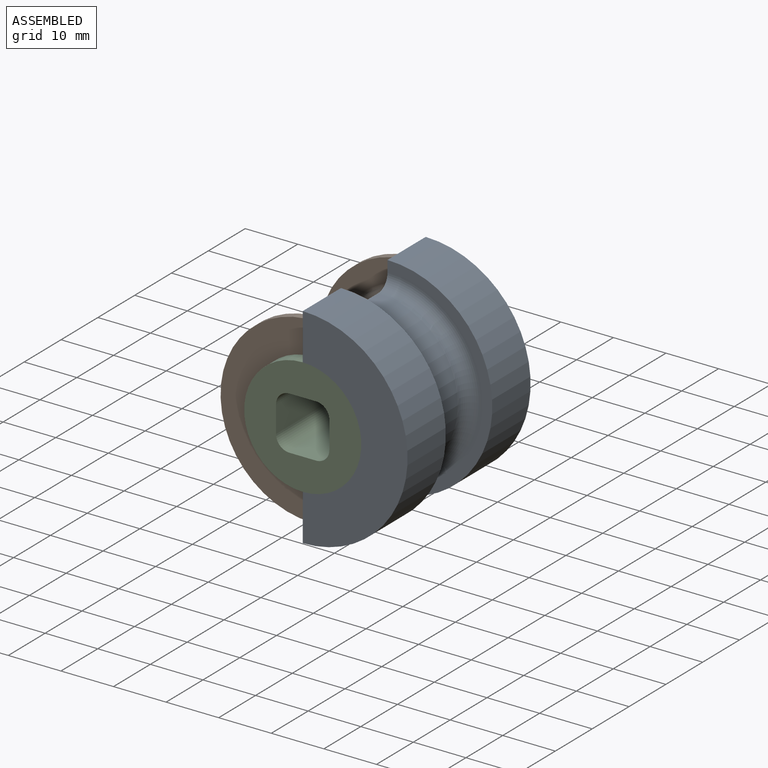
[diagram: assembled view]
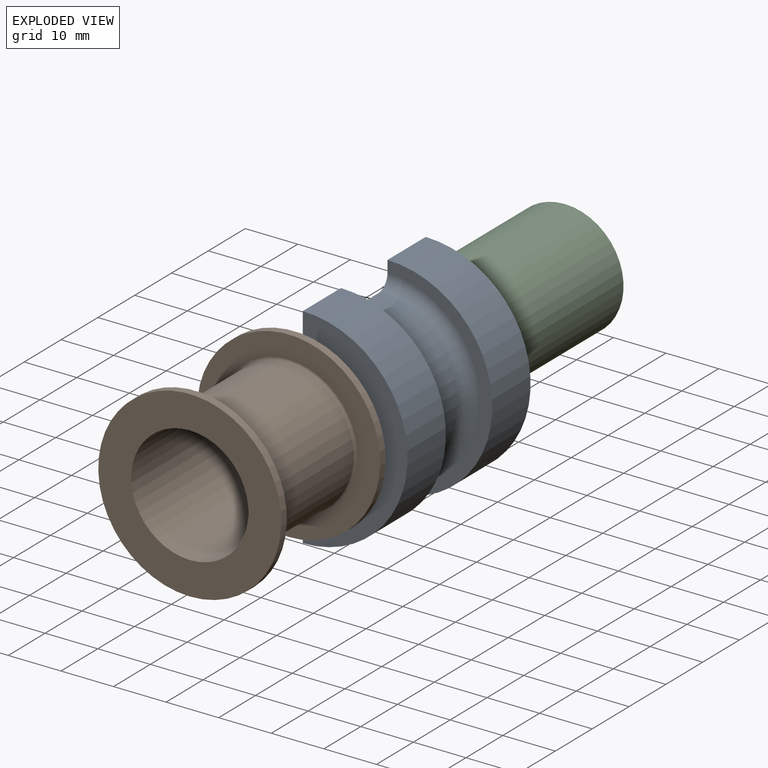
[diagram: exploded view]
GUIDED TOUR — MATED ASSEMBLY (Onshape document 93d06489c012cacd7a28e171, AutoMate assembly 93d06489c012cacd7a28e171_f28ea91fb19ef04345c81e36_e78b62e4adffebb3aece36a7_default)

This assembly has 3 components, labeled P0..P2 below (a component is one placed occurrence of a part; the same part can appear more than once), held together by 2 mates. A mate is a constraint between two components; its type names the relative motion it leaves free:
  REVOLUTE — leaves rotation about the listed axis free (a hinge).
Axis/direction vectors are unit vectors and 'through' points are millimeter coordinates, both in the assembly's world frame.

MATES
  1. REVOLUTE "Revolute 1": P1 <-> P0, axis (0.000, -1.000, 0.000) through (35.04, 1.01, -7.10) mm
  2. REVOLUTE "Revolute 2": P2 <-> P0, axis (0.000, -1.000, 0.000) through (35.04, -1.53, -7.10) mm

ASSEMBLY ORDER
  1. P0 — the base component [order heuristic]
  2. P1 [order heuristic]
  3. P2 [order heuristic]
Order-tag legend:
  [order heuristic] — this assembly is geometrically interlocked (no collision-free removal order exists), so components are listed in mate-graph order; insertion feasibility is not verified.

Of the 3 components, 1 carries the full construction recipe — the FeatureScript program that regenerates the part's solid from scratch; the rest are supplied as boundary geometry only.
Each toured component is shown spotlighted twice — in the assembled view, then in the exploded view, where a leader line traces a displaced component back to its assembled socket (saturated green if recipe-attached, orange if geometry-only; every other component desaturated gray) — followed by its recipe or geometry summary and the mates that hold it.
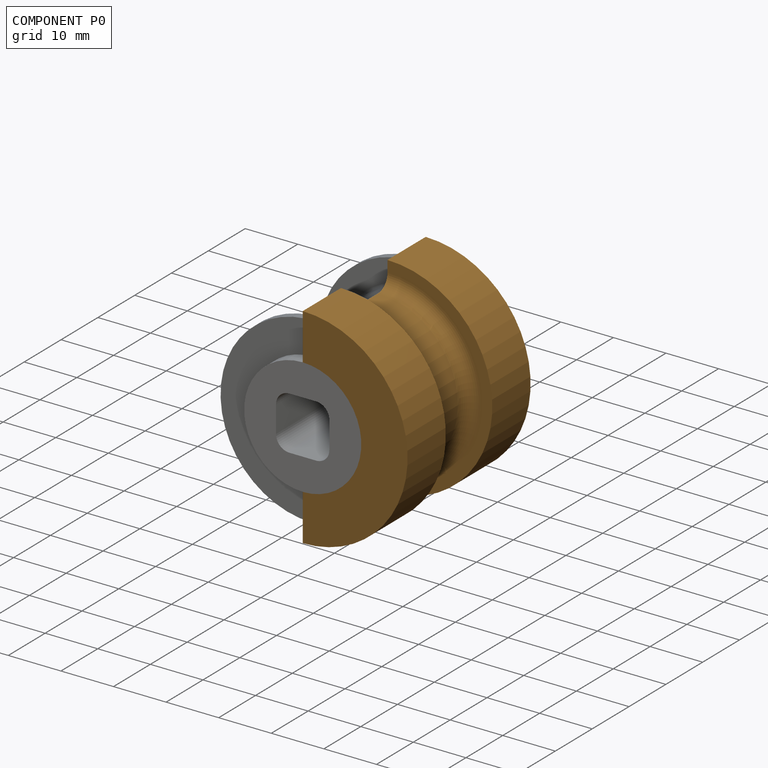
[diagram: component P0 — assembled]
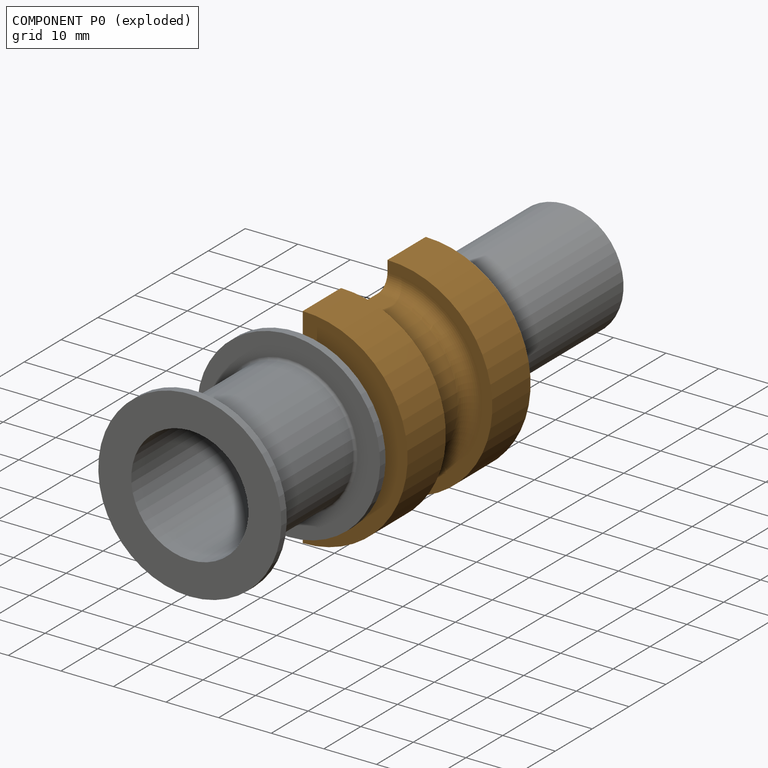
[diagram: component P0 — exploded]
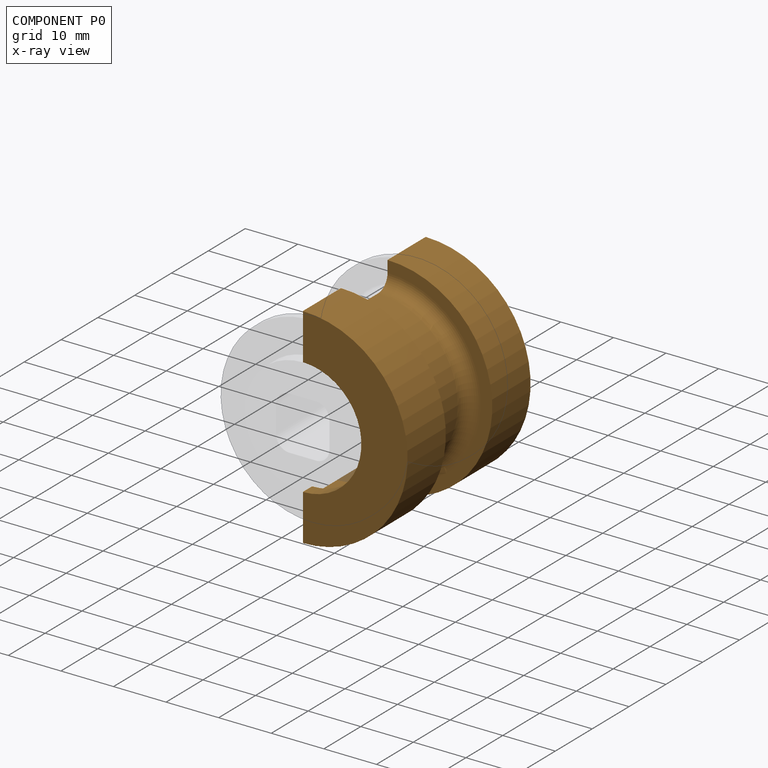
[diagram: component P0 — x-ray view]
COMPONENT P0 — geometry summary (no construction recipe available for this part):
  bounding box: 42.3 x 33.4 x 21.1 mm
  B-rep topology: 1 solid, 31 faces, 152 edges
  volume: 8726 mm^3 (29% of its bounding box)
  symmetry: mirror-symmetric across its z mid-plane
Held by: REVOLUTE mate "Revolute 1" to P1; REVOLUTE mate "Revolute 2" to P2.
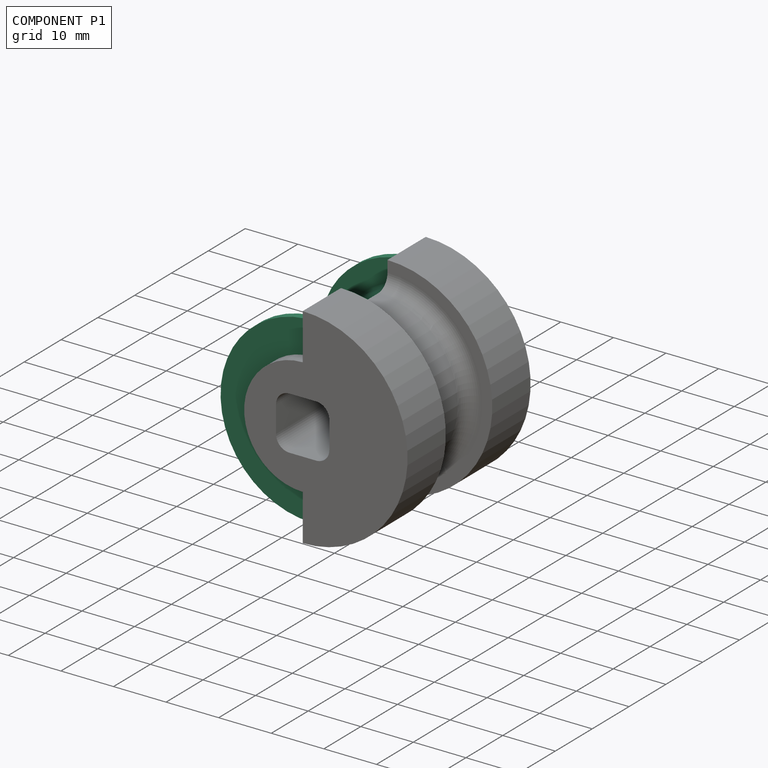
[diagram: component P1 — assembled]
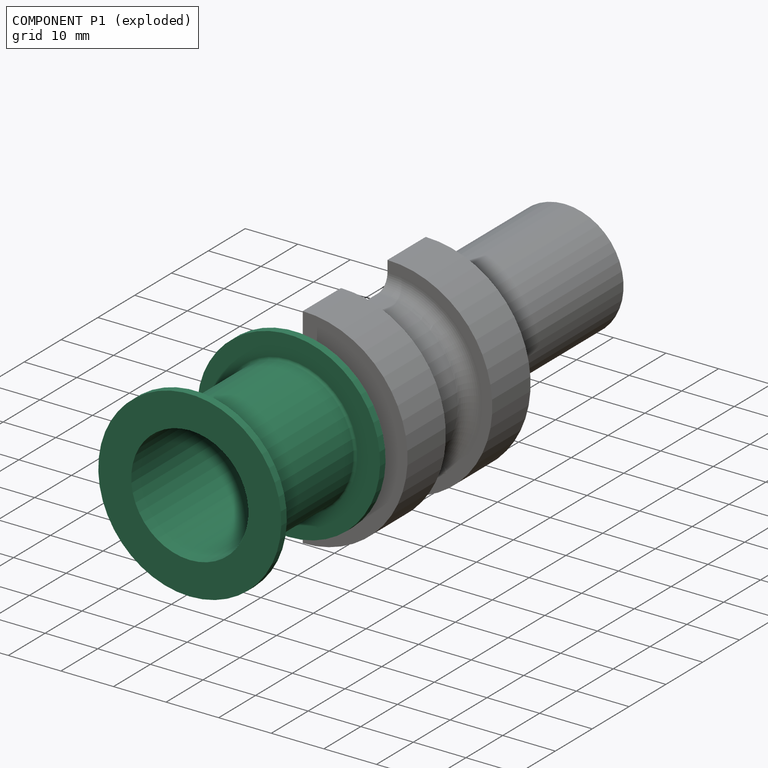
[diagram: component P1 — exploded]
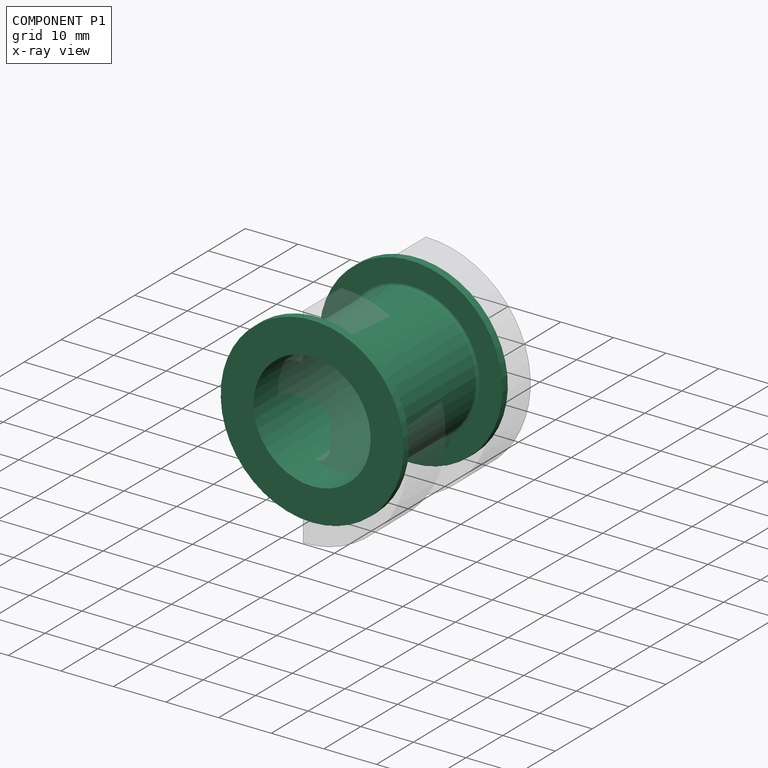
[diagram: component P1 — x-ray view]
COMPONENT P1 — recipe-attached (CADFS 00992720, mesh-verified: the recipe's output STEP matches this component's geometry to below the mesh-comparison resolution (tessellation chordal tolerance ~0.0851 mm)).
Held by: REVOLUTE mate "Revolute 1" to P0.
Construction recipe (FeatureScript — the CAD program that rebuilds this solid; sketch coordinates are in the units given by the * unit suffixes, e.g. mm):

FeatureScript 1511;
import(path : "onshape/std/geometry.fs", version : "1511.0");
import(path : "onshape/std/common.fs", version : "1511.0");
const mm = millimeter;
const VERTEX = EntityType.VERTEX;
const EDGE = EntityType.EDGE;
const FACE = EntityType.FACE;
const BODY = EntityType.BODY;
function v(x, y){return vector(x, y);}
function OD(order){return orderDisambiguation(order);}
function OSD(set){return originalSetDisambiguation(set);}
function TD(topology){return topologyDisambiguation(topology);}
function TDD(query){return trueDependencyDisambiguation(query);}
function sQuery(a, b, c) {return sketchEntityQuery(a, b, c);}

annotation { "Feature Type Name" : "Feature", "Feature Type Description" : "" }
export const myFeature = defineFeature(function(context is Context, id is Id, definition is map)
    precondition{}
    {
        {
            var Q0;
            Q0=qCreatedBy(makeId("Top.planeOp"),FACE);
            var sketch = newSketch(context, id + "F0", { "sketchPlane" : qUnion([Q0])});
            skLineSegment(sketch, "E0", {"start": v(0, 0) * mm, "end": v(17.4, 0) * mm, "construction": true});
            skCircle(sketch, "E1", {"center": v(0, 0) * mm, "radius": 8.9 * mm, "construction": true});
            skLineSegment(sketch, "E2", {"start": v(17.4, 12.66) * mm, "end": v(13.14, 12.66) * mm});
            skLineSegment(sketch, "E3", {"start": v(17.4, -12.66) * mm, "end": v(13.14, -12.66) * mm});
            skLineSegment(sketch, "E4", {"start": v(0, -15.82) * mm, "end": v(0, 21.52) * mm, "construction": true});
            skLineSegment(sketch, "E5.0", {"start": v(17.4, -14.16) * mm, "end": v(11.14, -14.16) * mm});
            skLineSegment(sketch, "E5.2", {"start": v(17.4, 14.17) * mm, "end": v(11.14, 14.17) * mm});
            skLineSegment(sketch, "E6", {"start": v(17.4, 14.17) * mm, "end": v(17.4, 12.66) * mm});
            skLineSegment(sketch, "E7", {"start": v(17.4, -12.66) * mm, "end": v(17.4, -14.16) * mm});
            skLineSegment(sketch, "E8", {"start": v(11.14, 14.17) * mm, "end": v(11.14, -14.16) * mm});
            skLineSegment(sketch, "E9", {"start": v(12.64, 12.16) * mm, "end": v(12.64, -12.16) * mm});
            skPoint(sketch, "E10.visualSharp", {"position": v(12.64, 12.66) * mm});
            skArc(sketch, "E10.filletArc", {"start": v(13.14, 12.66) * mm, "mid": v(12.78, 12.52) * mm, "end": v(12.64, 12.16) * mm});
            skPoint(sketch, "E11.visualSharp", {"position": v(12.64, -12.66) * mm});
            skArc(sketch, "E11.filletArc", {"start": v(12.64, -12.16) * mm, "mid": v(12.78, -12.5) * mm, "end": v(13.14, -12.66) * mm});
            skPoint(sketch, "E12.visualSharp", {"position": v(11.14, 14.17) * mm});
            skPoint(sketch, "E13.visualSharp", {"position": v(11.14, -14.16) * mm});
            skSolve(sketch);
        }
        {
            var Q0;
            Q0=qSketchRegion(id+"F0",true);
            var Q1;
            Q1=sQuery(id+"F0.wireOp",EDGE,"E4");
            revolve(context, id + "F1", {"entities" : qUnion([Q0]), "axis" : qUnion([Q1]), "revolveType" : RevolveType.FULL});
        }
    });
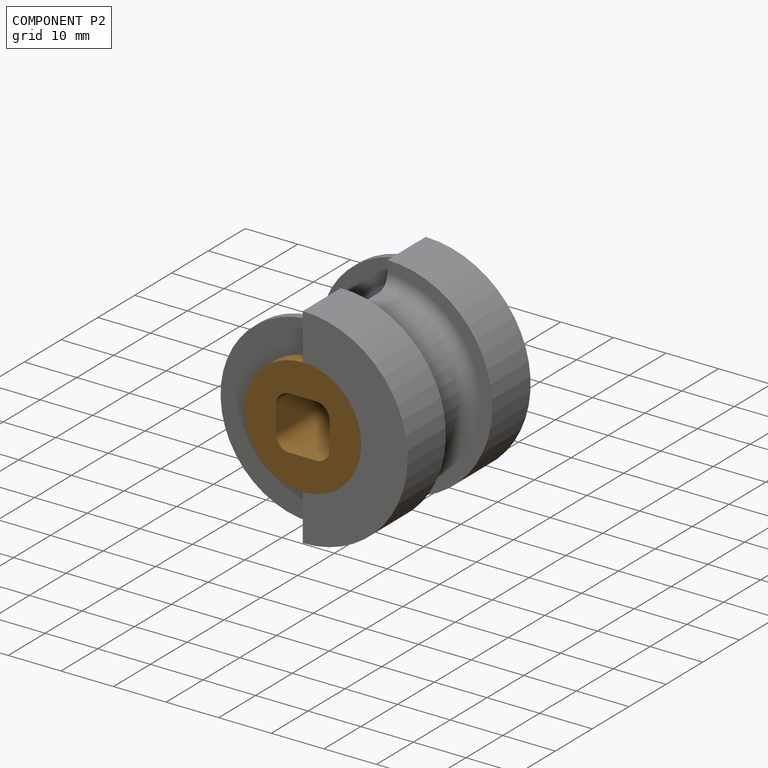
[diagram: component P2 — assembled]
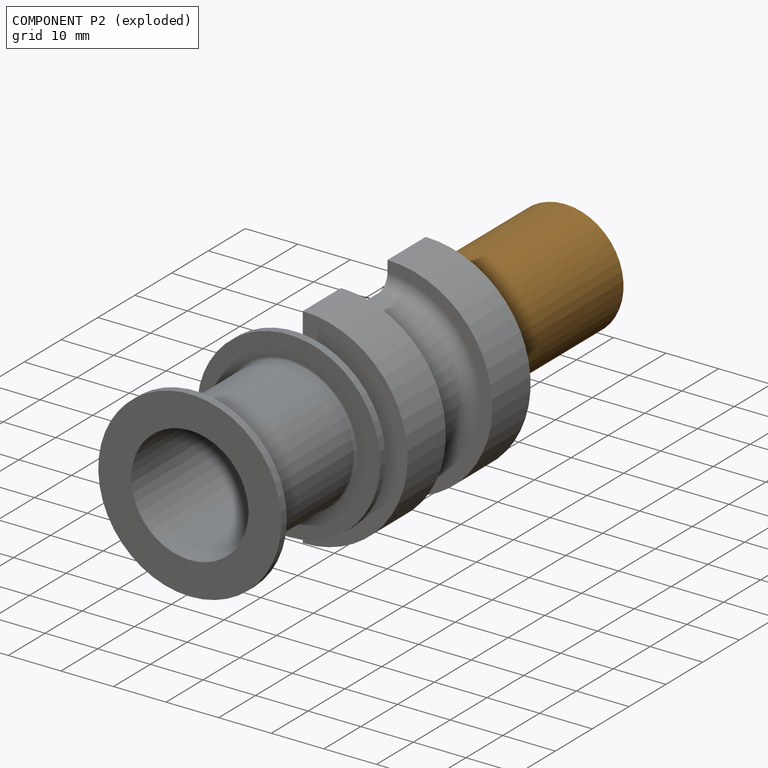
[diagram: component P2 — exploded]
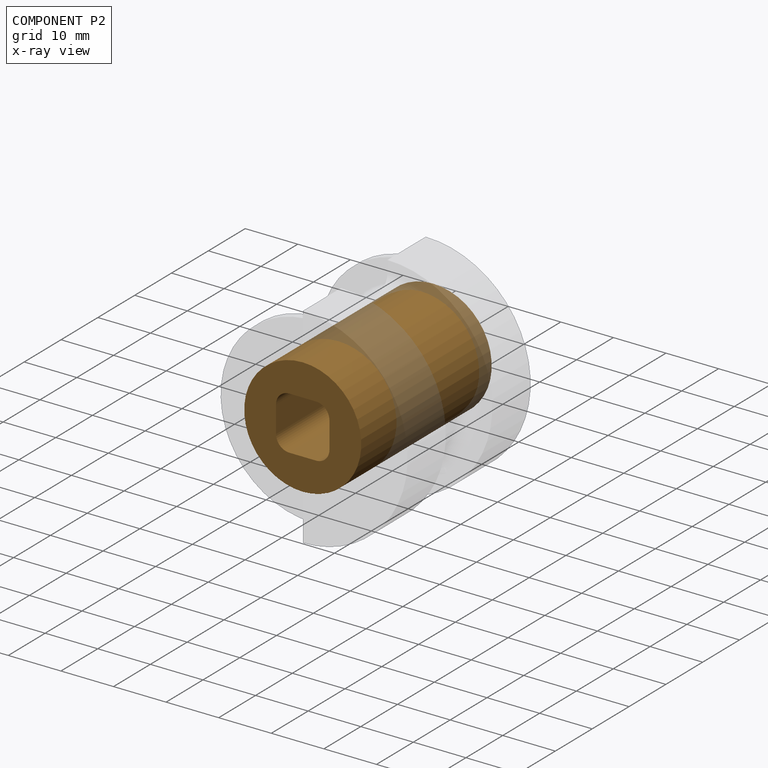
[diagram: component P2 — x-ray view]
COMPONENT P2 — geometry summary (no construction recipe available for this part):
  bounding box: 35.4 x 22.3 x 22.3 mm
  B-rep topology: 1 solid, 11 faces, 56 edges
  volume: 10338 mm^3 (59% of its bounding box)
  symmetry: 2-fold rotationally symmetric about the x axis; 4-fold rotationally symmetric about the y axis; 2-fold rotationally symmetric about the z axis; mirror-symmetric across its x mid-plane, y mid-plane, z mid-plane
Held by: REVOLUTE mate "Revolute 2" to P0.
PROVENANCE & LICENSES
Assembly (occurrences, transforms, mates, per-part STEP geometry): AutoMate dataset, Zenodo record 7776208, CC0.
Construction recipes: CADFS (HuggingFace VladPyatov/CADFS, CC-BY-4.0, layered over the ABC dataset), FeatureScript reconstruction programs keyed by ABC model id.
Join: ABC meta listings map ABC model id -> Onshape documentId; within a shared document, parts are matched by geometric signature (bounding-box dims + volume at 0.1% relative tolerance, exact B-rep face/solid counts).
Verification: 1 of this assembly's 3 components carries a recipe attachment, and every attachment is mesh-verified: the CADFS STEP and the AutoMate member STEP were compared as meshes in their shared local frame (symmetric sampled-point-to-mesh distance); worst across the 1 attachment: below the mesh-comparison resolution (tessellation chordal tolerance ~0.0851 mm) on a 57 mm part.
Renders: orthographic iso camera (az 35 / el 25); the floor grid conveys scale (grid pitch printed in each image; no ruler). In the exploded view each component is displaced by its stored offset vector: the offsets alone carry the explosion direction (mate normal/axis signs are not orientation cues and do not encode it), and separation distances are assigned per mate-chain, not proportionally to assembly-order depth.
